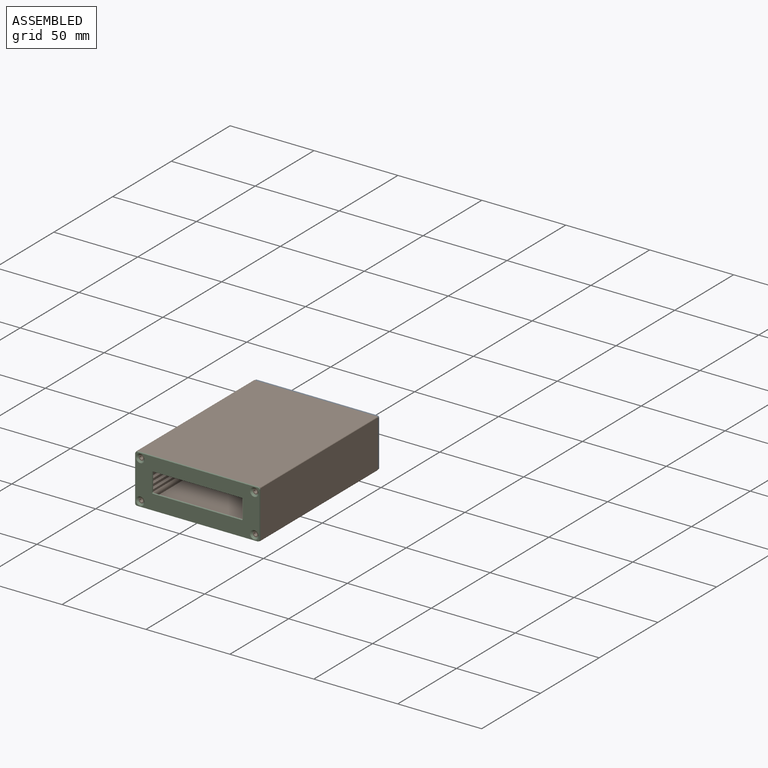
[diagram: assembled view]
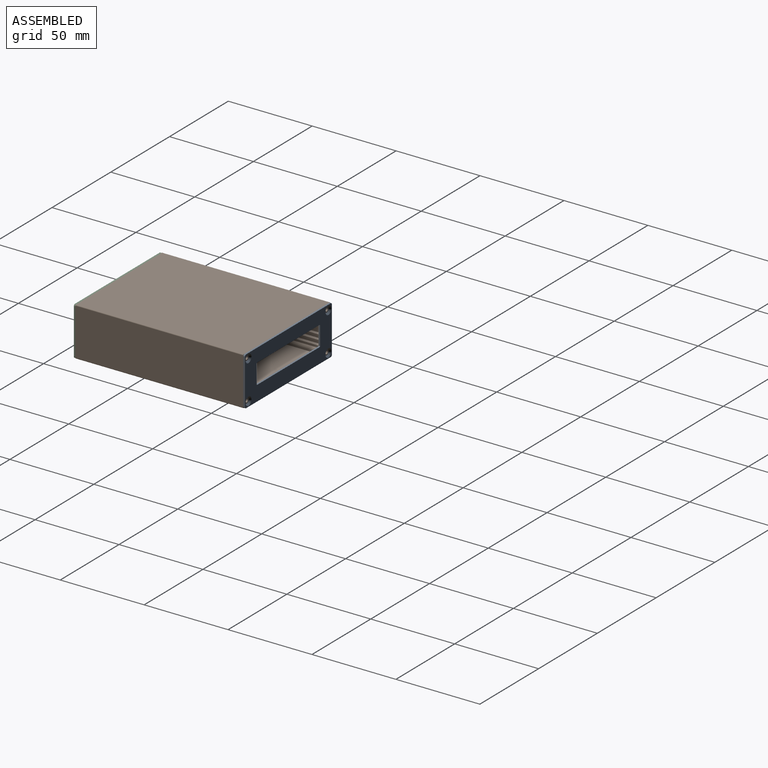
[diagram: assembled view, second angle]
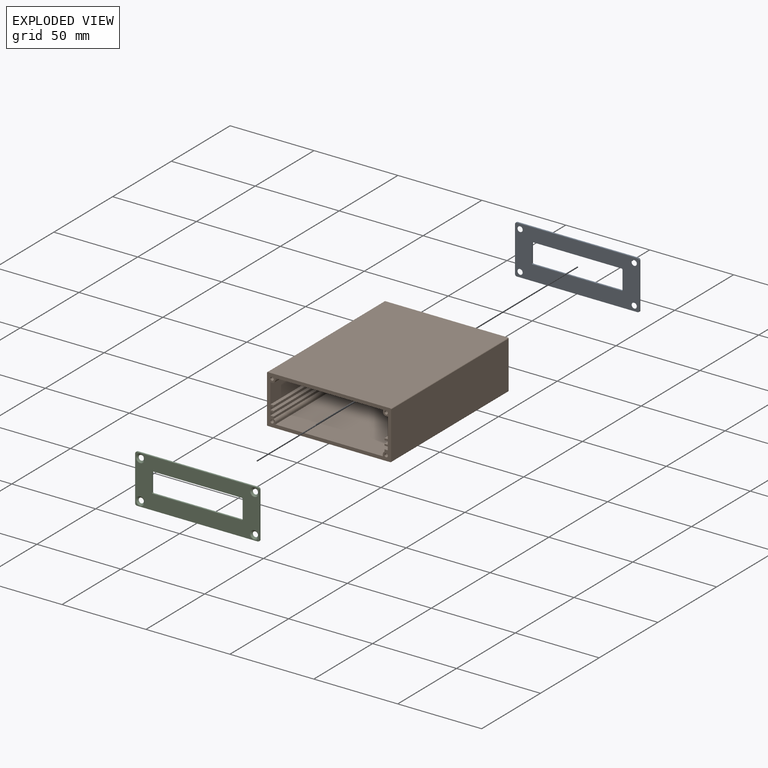
[diagram: exploded view]
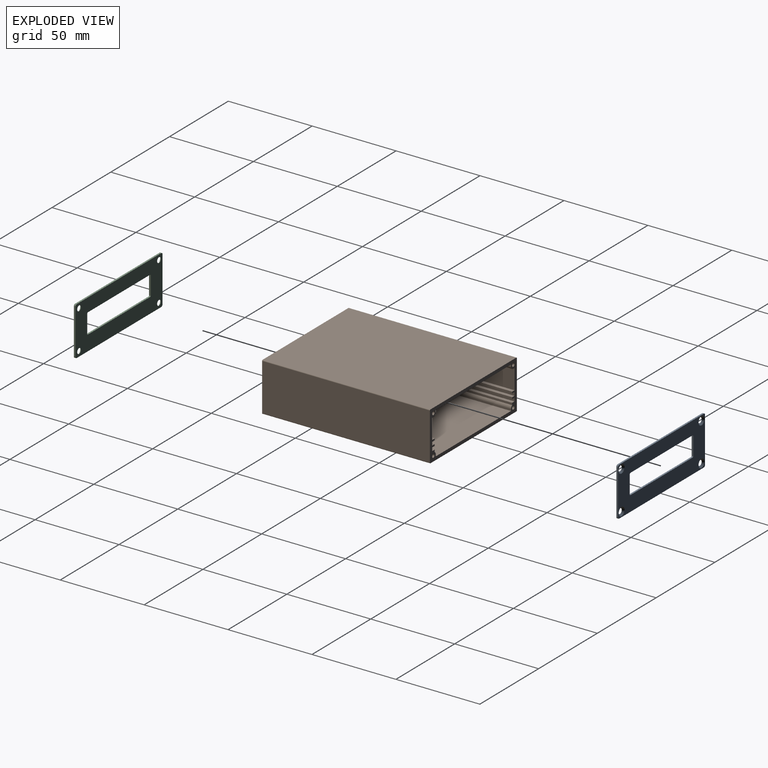
[diagram: exploded view, second angle]
ASSEMBLY  parts=3 mates=2
PART A: 26 faces, bbox 74x1x29 mm
  f0: plane 27x1mm, normal (1,0,0), area 27mm2, adj f1,f15,f16,f17
  f1: cylinder r=1mm len=1mm, axis (0,-1,0), area 1.6mm2, adj f0,f2,f16,f17
  f2: plane 72x1mm, normal (0,0,1), area 72mm2, adj f1,f3,f16,f17
  f3: cylinder r=1mm len=1mm, axis (0,-1,0), area 1.6mm2, adj f2,f4,f16,f17
  f4: plane 27x1mm, normal (-1,0,0), area 27mm2, adj f3,f5,f16,f17
  f5: cylinder r=1mm len=1mm, axis (0,-1,0), area 1.6mm2, adj f4,f6,f16,f17
  f6: plane 72x1mm, normal (0,0,-1), area 72mm2, adj f5,f15,f16,f17
  f7: cylinder r=0.5mm len=1mm, axis (0,-1,0), area 0.8mm2, adj f8,f14,f16,f17
  f8: plane 53x1mm, normal (0,0,1), area 53mm2, adj f7,f9,f16,f17
  f9: cylinder r=0.5mm len=1mm, axis (0,-1,0), area 0.8mm2, adj f8,f10,f16,f17
  f10: plane 11x1mm, normal (1,0,0), area 11mm2, adj f9,f11,f16,f17
  f11: cylinder r=0.5mm len=1mm, axis (0,-1,0), area 0.8mm2, adj f10,f12,f16,f17
  f12: plane 53x1mm, normal (0,0,-1), area 53mm2, adj f11,f13,f16,f17
  f13: cylinder r=0.5mm len=1mm, axis (0,-1,0), area 0.8mm2, adj f12,f14,f16,f17
  f14: plane 11x1mm, normal (-1,0,0), area 11mm2, adj f7,f13,f16,f17
  f15: cylinder r=1mm len=1mm, axis (0,-1,0), area 1.6mm2, adj f0,f6,f16,f17
  f16: plane 74x29mm, normal (0,1,0), area 1467.2mm2, adj f0,f1,f2,f3,f4,f5,f6,f7
  f17: plane 74x29mm, normal (0,-1,0), area 1418.8mm2, adj f0,f1,f2,f3,f4,f5,f6,f7
  f18: cylinder r=1.55mm len=3.1mm, axis (0,-1,0), area 0.5mm2, adj f16,f19
  f19: cone r=1.55mm half-angle=45deg, axis (0,-1,0), area 17.1mm2, adj f17,f18
  f20: cylinder r=1.55mm len=3.1mm, axis (0,-1,0), area 0.5mm2, adj f16,f21
  f21: cone r=1.55mm half-angle=45deg, axis (0,-1,0), area 17.1mm2, adj f17,f20
  f22: cylinder r=1.55mm len=3.1mm, axis (0,-1,0), area 0.5mm2, adj f16,f23
  f23: cone r=1.55mm half-angle=45deg, axis (0,-1,0), area 17.1mm2, adj f17,f22
  f24: cylinder r=1.55mm len=3.1mm, axis (0,-1,0), area 0.5mm2, adj f16,f25
  f25: cone r=1.55mm half-angle=45deg, axis (0,-1,0), area 17.1mm2, adj f17,f24
PART B: 48 faces, bbox 74x100x29 mm
  f0: cylinder r=0.5mm len=100mm, axis (0,1,0), area 78.5mm2, adj f1,f45,f46,f47
  f1: plane 100x73mm, normal (0,0,-1), area 7300mm2, adj f0,f2,f46,f47
  f2: cylinder r=0.5mm len=100mm, axis (0,1,0), area 78.5mm2, adj f1,f3,f46,f47
  f3: plane 100x28mm, normal (1,0,0), area 2800mm2, adj f2,f4,f46,f47
  f4: cylinder r=0.5mm len=100mm, axis (0,1,0), area 78.5mm2, adj f3,f5,f46,f47
  f5: plane 100x73mm, normal (0,0,1), area 7300mm2, adj f4,f6,f46,f47
  f6: cylinder r=0.5mm len=100mm, axis (0,1,0), area 78.5mm2, adj f5,f45,f46,f47
  f7: plane 100x64mm, normal (0,0,-1), area 6400mm2, adj f8,f44,f46,f47
  f8: plane 100x1mm, normal (-1,0,0), area 100mm2, adj f7,f9,f46,f47
  f9: cylinder r=2mm len=100mm, axis (0,1,0), area 314.2mm2, adj f8,f10,f46,f47
  f10: plane 100x1mm, normal (0,0,-1), area 100mm2, adj f9,f11,f46,f47
  f11: plane 100x12mm, normal (-1,0,0), area 1200mm2, adj f10,f12,f46,f47
  f12: plane 100x2mm, normal (0,0,1), area 200mm2, adj f11,f13,f46,f47
  f13: plane 100x1mm, normal (-1,0,0), area 100mm2, adj f12,f14,f46,f47
  f14: plane 100x2mm, normal (0,0,-1), area 200mm2, adj f13,f15,f46,f47
  f15: plane 100x2mm, normal (-1,0,0), area 200mm2, adj f14,f16,f46,f47
  f16: plane 100x2mm, normal (0,0,1), area 200mm2, adj f15,f17,f46,f47
  f17: plane 100x1mm, normal (-1,0,0), area 100mm2, adj f16,f18,f46,f47
  f18: plane 100x2mm, normal (0,0,-1), area 200mm2, adj f17,f19,f46,f47
  f19: plane 100x2mm, normal (-1,0,0), area 200mm2, adj f18,f20,f46,f47
  f20: plane 100x2mm, normal (0,0,1), area 200mm2, adj f19,f21,f46,f47
  f21: plane 100x1.27mm, normal (-1,0,0), area 126.8mm2, adj f20,f22,f46,f47
  f22: cylinder r=2mm len=100mm, axis (0,1,0), area 209.4mm2, adj f21,f23,f46,f47
  f23: plane 100x1mm, normal (-1,0,0), area 100mm2, adj f22,f24,f46,f47
  f24: plane 100x64mm, normal (0,0,1), area 6400mm2, adj f23,f25,f46,f47
  f25: plane 100x1mm, normal (1,0,0), area 100mm2, adj f24,f26,f46,f47
  f26: cylinder r=2mm len=100mm, axis (0,1,0), area 209.4mm2, adj f25,f27,f46,f47
  f27: plane 100x1.27mm, normal (1,0,0), area 126.8mm2, adj f26,f28,f46,f47
  f28: plane 100x2mm, normal (0,0,1), area 200mm2, adj f27,f29,f46,f47
  f29: plane 100x2mm, normal (1,0,0), area 200mm2, adj f28,f30,f46,f47
  f30: plane 100x2mm, normal (0,0,-1), area 200mm2, adj f29,f31,f46,f47
  f31: plane 100x1mm, normal (1,0,0), area 100mm2, adj f30,f32,f46,f47
  f32: plane 100x2mm, normal (0,0,1), area 200mm2, adj f31,f33,f46,f47
  f33: plane 100x2mm, normal (1,0,0), area 200mm2, adj f32,f34,f46,f47
  f34: plane 100x2mm, normal (0,0,-1), area 200mm2, adj f33,f35,f46,f47
  f35: plane 100x1mm, normal (1,0,0), area 100mm2, adj f34,f36,f46,f47
  f36: plane 100x2mm, normal (0,0,1), area 200mm2, adj f35,f37,f46,f47
  f37: plane 100x12mm, normal (1,0,0), area 1200mm2, adj f36,f38,f46,f47
  f38: plane 100x1mm, normal (0,0,-1), area 100mm2, adj f37,f39,f46,f47
  f39: cylinder r=2mm len=100mm, axis (0,1,0), area 314.2mm2, adj f38,f44,f46,f47
  f40: cylinder r=1mm len=100mm, axis (0,1,0), area 628.3mm2, adj f46,f47
  f41: cylinder r=1mm len=100mm, axis (0,1,0), area 628.3mm2, adj f46,f47
  f42: cylinder r=1mm len=100mm, axis (0,1,0), area 628.3mm2, adj f46,f47
  f43: cylinder r=1mm len=100mm, axis (0,1,0), area 628.3mm2, adj f46,f47
  f44: plane 100x1mm, normal (1,0,0), area 100mm2, adj f7,f39,f46,f47
  f45: plane 100x28mm, normal (-1,0,0), area 2800mm2, adj f0,f6,f46,f47
  f46: plane 74x29mm, normal (0,-1,0), area 428mm2, adj f0,f1,f2,f3,f4,f5,f6,f7
  f47: plane 74x29mm, normal (0,1,0), area 428mm2, adj f0,f1,f2,f3,f4,f5,f6,f7
PART C: same geometry as A
PLACE A rot(axis=(0,0,1),180deg) t=(-97.14,12.94,-48.65)mm
PLACE B t=(-98.08,11.94,-48.8)mm
PLACE C t=(-97.14,-89.01,-48.65)mm
MATE planar B.f9 <-> C.f18  axis (0,1,0) through (-63.14,-88.06,-37.15)mm
MATE planar A.f18 <-> B.f39  axis (0,-1,0) through (-131.14,11.94,-37.15)mm
